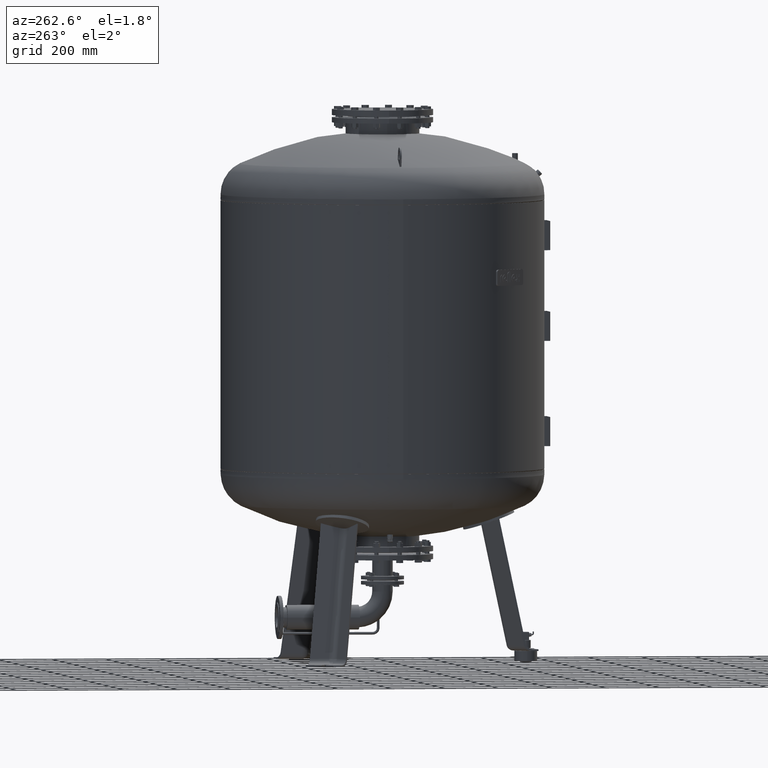
[diagram: clean part render]
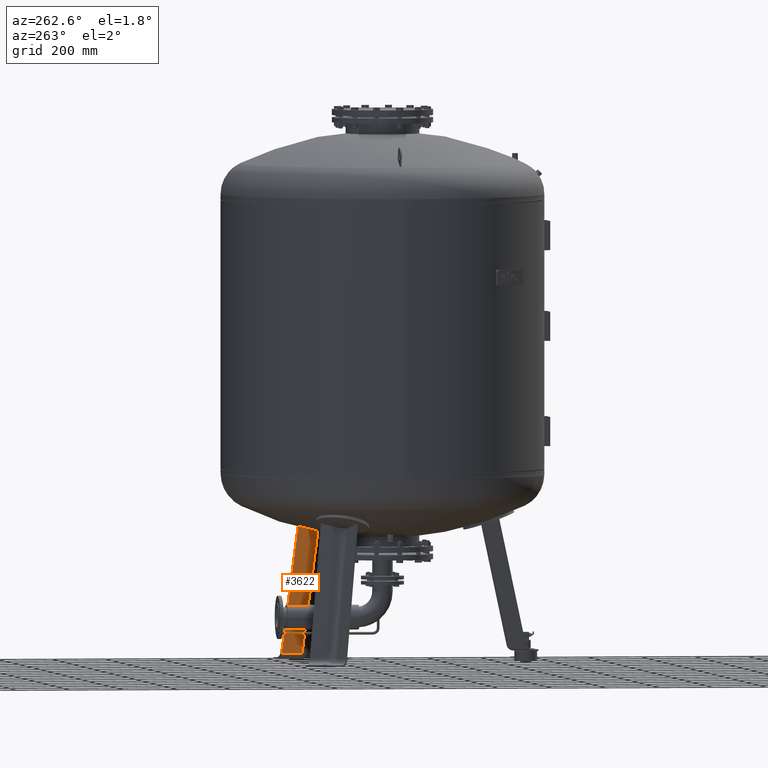
[diagram: same view with one face highlighted and labeled with its STEP entity id]
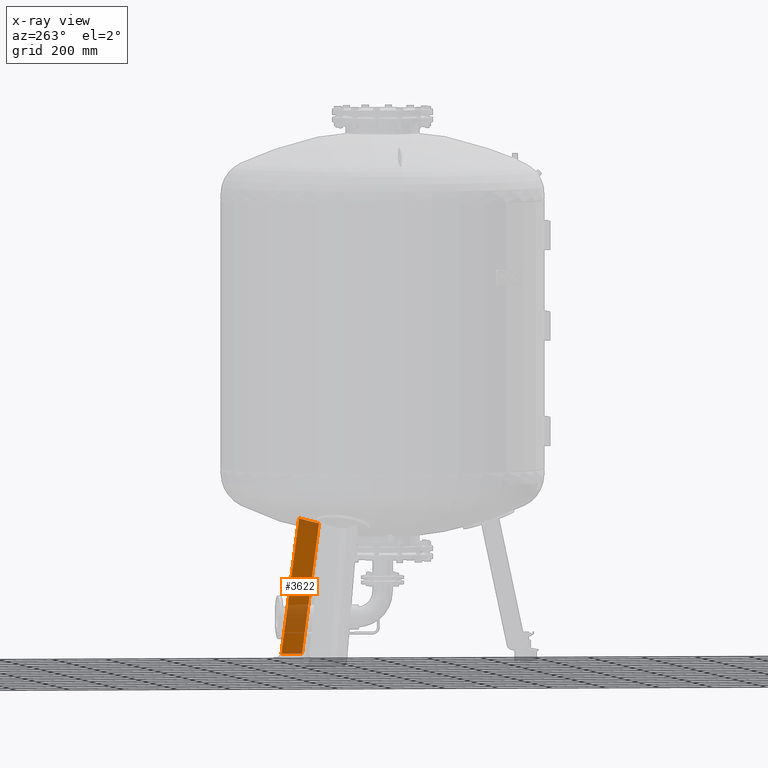
[diagram: x-ray of the same camera — body ghosted, the highlighted face saturated]
A machine part, auxiliary view. The second image highlights one B-rep face of the part: STEP entity #3622.
The next image is the same camera in x-ray: the body ghosted, the highlighted face saturated — about 26% of this face is hidden behind the body in this view.
In plain terms, the highlighted planar face has unit normal (-0.9697, 0.1854, -0.1588).
Its self-contained STEP definition (entity closure, byte-faithful):
#2837=CARTESIAN_POINT('',(398.505553854202280,248.710057248237350,21.029948423057281));
#2838=VERTEX_POINT('',#2837);
#2879=CARTESIAN_POINT('',(412.743118968847450,323.167840413704710,21.029948423057284));
#2880=VERTEX_POINT('',#2879);
#2881=CARTESIAN_POINT('',(398.505553854202280,248.710057248237350,21.029948423057281));
#2882=DIRECTION('',(0.187813845079449,0.982204642422582,4.686537E-017));
#2883=VECTOR('',#2882,75.806792138366575);
#2884=LINE('',#2881,#2883);
#2885=EDGE_CURVE('',#2838,#2880,#2884,.T.);
#3371=CARTESIAN_POINT('',(309.243106825412270,197.174359427640810,505.942739782580020));
#3372=VERTEX_POINT('',#3371);
#3373=CARTESIAN_POINT('',(320.100983866293630,269.680878773943680,524.302688812935000));
#3374=VERTEX_POINT('',#3373);
#3375=CARTESIAN_POINT('',(116.635947881441950,19.973877625133753,1475.203780025492300));
#3376=DIRECTION('',(0.969740897595359,-0.185430570007245,0.158802063077709));
#3377=DIRECTION('',(0.180056805991956,0.103955845408880,-0.978147600733805));
#3378=AXIS2_PLACEMENT_3D('',#3375,#3376,#3377);
#3379=CIRCLE('',#3378,1003.974348556914600);
#3380=EDGE_CURVE('',#3372,#3374,#3379,.T.);
#3594=CARTESIAN_POINT('',(309.243106825412270,197.174359427640810,505.942739782580020));
#3595=DIRECTION('',(0.180056805991956,0.103955845408880,-0.978147600733806));
#3596=VECTOR('',#3595,495.746031576156330);
#3597=LINE('',#3594,#3596);
#3598=EDGE_CURVE('',#3372,#2838,#3597,.T.);
#3606=CARTESIAN_POINT('',(402.334414647440890,232.287882600950410,-21.527282742766886));
#3607=DIRECTION('',(-0.969740897595359,0.185430570007245,-0.158802063077709));
#3608=DIRECTION('',(0.180056805991956,0.103955845408880,-0.978147600733806));
#3609=AXIS2_PLACEMENT_3D('',#3606,#3607,#3608);
#3610=PLANE('',#3609);
#3611=ORIENTED_EDGE('',*,*,#3380,.T.);
#3612=CARTESIAN_POINT('',(412.743118968847450,323.167840413704710,21.029948423057284));
#3613=DIRECTION('',(-0.180056805991956,-0.103955845408880,0.978147600733806));
#3614=VECTOR('',#3613,514.516152789541020);
#3615=LINE('',#3612,#3614);
#3616=EDGE_CURVE('',#2880,#3374,#3615,.T.);
#3617=ORIENTED_EDGE('',*,*,#3616,.F.);
#3618=ORIENTED_EDGE('',*,*,#2885,.F.);
#3619=ORIENTED_EDGE('',*,*,#3598,.F.);
#3620=EDGE_LOOP('',(#3611,#3617,#3618,#3619));
#3621=FACE_OUTER_BOUND('',#3620,.T.);
#3622=ADVANCED_FACE('',(#3621),#3610,.T.);